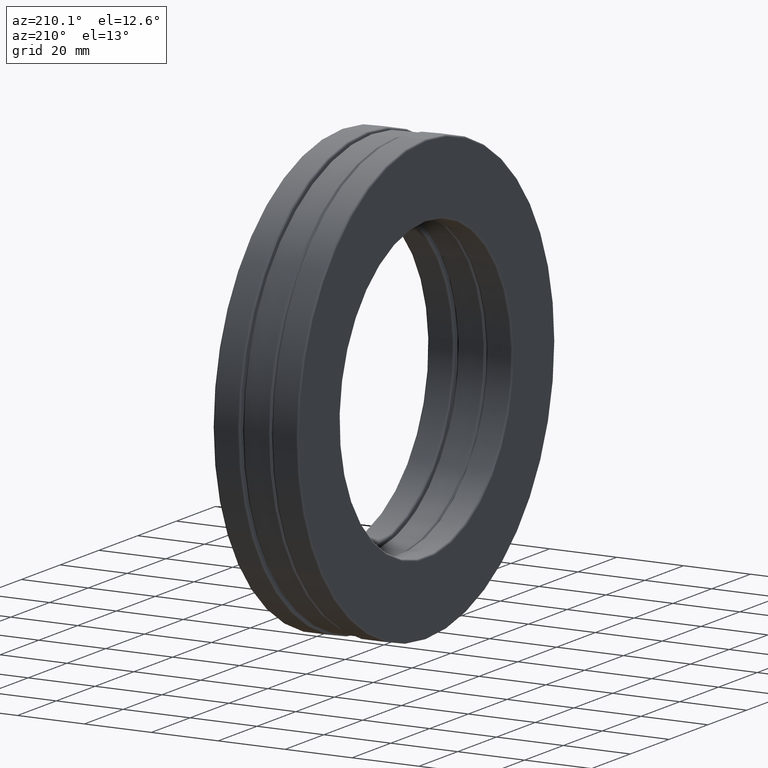
[diagram: clean part render]
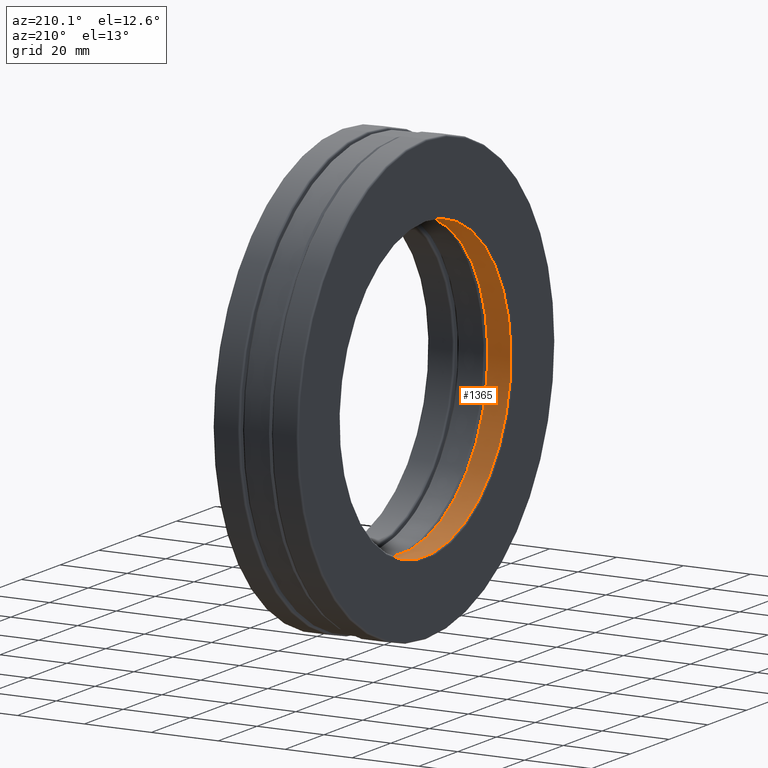
[diagram: same view with one face highlighted and labeled with its STEP entity id]
A machine part, auxiliary view. The second image highlights one B-rep face of the part: STEP entity #1365.
In plain terms, the highlighted cylindrical surface (bore or boss wall) has radius 44.45 mm, axis along (-1, -0, -0).
Its self-contained STEP definition (entity closure, byte-faithful):
#54 = DIRECTION ( 'NONE',  ( 0.0000000000000000000, 0.0000000000000000000, 1.000000000000000000 ) ) ;
#75 = CARTESIAN_POINT ( 'NONE',  ( -0.2074999999999998800, 0.0000000000000000000, 0.0000000000000000000 ) ) ;
#162 = AXIS2_PLACEMENT_3D ( 'NONE', #75, #969, #54 ) ;
#215 = CARTESIAN_POINT ( 'NONE',  ( -0.4800000000000000900, 0.0000000000000000000, 1.750000000000000000 ) ) ;
#300 = DIRECTION ( 'NONE',  ( -1.000000000000000000, -0.0000000000000000000, -0.0000000000000000000 ) ) ;
#322 = DIRECTION ( 'NONE',  ( 0.0000000000000000000, 0.0000000000000000000, 1.000000000000000000 ) ) ;
#363 = CIRCLE ( 'NONE', #511, 1.750000000000000000 ) ;
#395 = VERTEX_POINT ( 'NONE', #1244 ) ;
#411 = DIRECTION ( 'NONE',  ( 0.0000000000000000000, 0.0000000000000000000, 1.000000000000000000 ) ) ;
#510 = CARTESIAN_POINT ( 'NONE',  ( -0.4800000000000000900, 0.0000000000000000000, 0.0000000000000000000 ) ) ;
#511 = AXIS2_PLACEMENT_3D ( 'NONE', #510, #633, #322 ) ;
#515 = EDGE_LOOP ( 'NONE', ( #916 ) ) ;
#537 = EDGE_LOOP ( 'NONE', ( #1388 ) ) ;
#568 = AXIS2_PLACEMENT_3D ( 'NONE', #748, #300, #411 ) ;
#577 = CIRCLE ( 'NONE', #162, 1.750000000000000000 ) ;
#632 = FACE_OUTER_BOUND ( 'NONE', #515, .T. ) ;
#633 = DIRECTION ( 'NONE',  ( -1.000000000000000000, -0.0000000000000000000, -0.0000000000000000000 ) ) ;
#637 = EDGE_CURVE ( 'NONE', #395, #395, #577, .T. ) ;
#671 = EDGE_CURVE ( 'NONE', #1441, #1441, #363, .T. ) ;
#748 = CARTESIAN_POINT ( 'NONE',  ( 0.0000000000000000000, 0.0000000000000000000, 0.0000000000000000000 ) ) ;
#856 = FACE_OUTER_BOUND ( 'NONE', #537, .T. ) ;
#916 = ORIENTED_EDGE ( 'NONE', *, *, #637, .F. ) ;
#969 = DIRECTION ( 'NONE',  ( -1.000000000000000000, -0.0000000000000000000, -0.0000000000000000000 ) ) ;
#1244 = CARTESIAN_POINT ( 'NONE',  ( -0.2074999999999998800, 0.0000000000000000000, 1.750000000000000000 ) ) ;
#1365 = ADVANCED_FACE ( 'NONE', ( #856, #632 ), #1462, .F. ) ;
#1388 = ORIENTED_EDGE ( 'NONE', *, *, #671, .T. ) ;
#1441 = VERTEX_POINT ( 'NONE', #215 ) ;
#1462 = CYLINDRICAL_SURFACE ( 'NONE', #568, 1.750000000000000000 ) ;